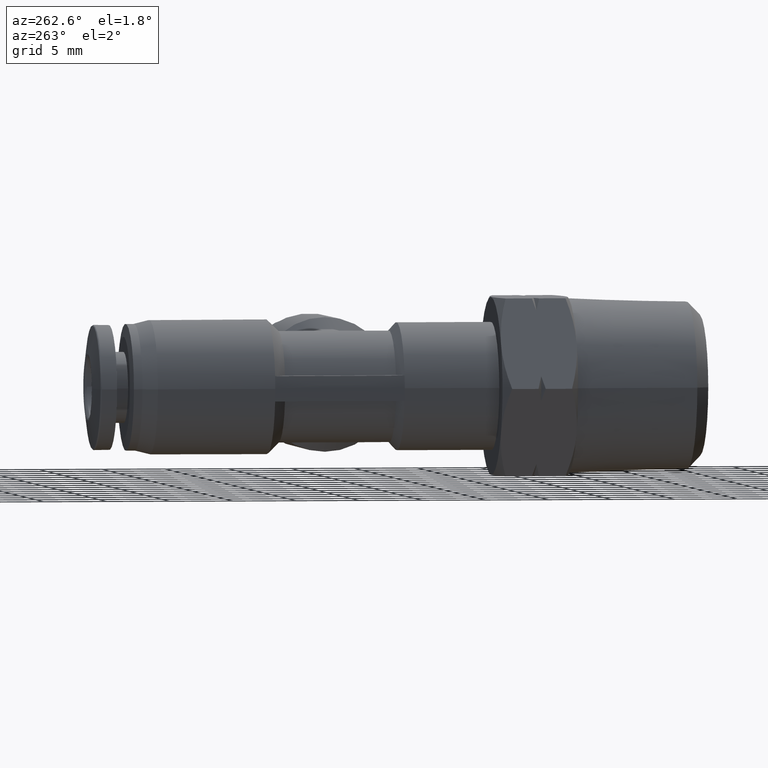
[diagram: clean part render]
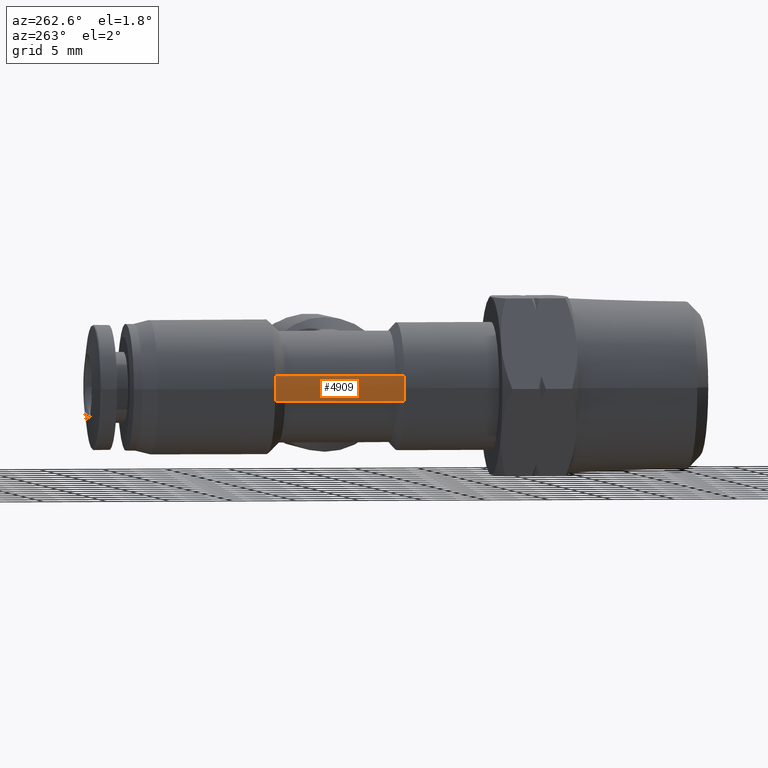
[diagram: same view with one face highlighted and labeled with its STEP entity id]
A machine part, auxiliary view. The second image highlights one B-rep face of the part: STEP entity #4909.
In plain terms, the highlighted face is a freeform B-spline surface patch.
Its self-contained STEP definition (entity closure, byte-faithful):
#110 = CARTESIAN_POINT ( 'NONE',  ( -0.1988123750489689500, 0.2952755905511810800, -4.889223947828115300E-017 ) ) ;
#152 = CARTESIAN_POINT ( 'NONE',  ( -0.2033737411290358600, 0.4304461942257217200, 0.01346103567415456700 ) ) ;
#191 = CARTESIAN_POINT ( 'NONE',  ( -0.1998977455091658100, 0.4980314960629921800, -0.03937007874015551600 ) ) ;
#235 = VERTEX_POINT ( 'NONE', #1703 ) ;
#309 = CARTESIAN_POINT ( 'NONE',  ( -0.2074046388050788100, 0.7007874015748031300, 0.02640471286691186900 ) ) ;
#459 = CARTESIAN_POINT ( 'NONE',  ( -0.1948818897617349000, 0.2952755905489998800, -0.03937007873975885400 ) ) ;
#599 = CARTESIAN_POINT ( 'NONE',  ( -0.2098956763555348300, 0.7007874015748031300, 0.01343934699367027800 ) ) ;
#710 = CARTESIAN_POINT ( 'NONE',  ( -0.2049136012519206000, 0.7007874015775575900, 0.03937007873963555700 ) ) ;
#785 = VERTEX_POINT ( 'NONE', #2352 ) ;
#814 = LINE ( 'NONE', #191, #3291 ) ;
#820 = EDGE_CURVE ( 'NONE', #1497, #2241, #2768, .T. ) ;
#869 = CARTESIAN_POINT ( 'NONE',  ( -0.2086557874515389300, 0.7007874015748033500, 1.338061379198932100E-016 ) ) ;
#996 = CARTESIAN_POINT ( 'NONE',  ( -0.1948818897597008600, 0.2952755905471793300, 0.03937007873973725300 ) ) ;
#1015 = CARTESIAN_POINT ( 'NONE',  ( -0.1948818897637087400, 0.2952755905511810800, -0.03937007874015763900 ) ) ;
#1057 = CARTESIAN_POINT ( 'NONE',  ( -0.1982257935940134900, 0.4304461942257217800, 0.03937007874015625900 ) ) ;
#1079 = B_SPLINE_CURVE_WITH_KNOTS ( 'NONE', 3,
 ( #869, #1778, #5046, #2279 ),
 .UNSPECIFIED., .F., .F.,
 ( 4, 4 ),
 ( 0.4999999999999985600, 1.000000000000000000 ),
 .UNSPECIFIED. ) ;
#1123 = CARTESIAN_POINT ( 'NONE',  ( -0.2086557874515389300, 0.7007874015748033500, 1.338061379198932100E-016 ) ) ;
#1478 = CARTESIAN_POINT ( 'NONE',  ( -0.2015696974243181600, 0.5656167979002625400, -0.03937007874015480800 ) ) ;
#1495 = CARTESIAN_POINT ( 'NONE',  ( -0.2049136012546228800, 0.7007874015748031300, 0.03937007874015338600 ) ) ;
#1497 = VERTEX_POINT ( 'NONE', #5361 ) ;
#1675 = CARTESIAN_POINT ( 'NONE',  ( -0.2086557874515389300, 0.7007874015748033500, 1.338061379198932100E-016 ) ) ;
#1703 = CARTESIAN_POINT ( 'NONE',  ( -0.1948818897617349000, 0.2952755905489998800, -0.03937007873975885400 ) ) ;
#1778 = CARTESIAN_POINT ( 'NONE',  ( -0.2086501575803068300, 0.7007874015748031300, -0.01320235643345581000 ) ) ;
#1785 = CARTESIAN_POINT ( 'NONE',  ( -0.1988188976377251700, 0.2952755905511811300, -0.01321067441155836100 ) ) ;
#1895 = ORIENTED_EDGE ( 'NONE', *, *, #3087, .T. ) ;
#1918 = CARTESIAN_POINT ( 'NONE',  ( -0.1998977455091658100, 0.4980314960629921800, 0.03937007874015555100 ) ) ;
#1956 = CARTESIAN_POINT ( 'NONE',  ( -0.2001138400257140800, 0.2952755905511810800, -0.01347192494324165300 ) ) ;
#1977 = DIRECTION ( 'NONE',  ( -0.02473082899675543200, 0.9996941462753160500, -1.079661359134243400E-014 ) ) ;
#2018 = VERTEX_POINT ( 'NONE', #5517 ) ;
#2041 = B_SPLINE_CURVE_WITH_KNOTS ( 'NONE', 3,
 ( #996, #5144, #2876, #110 ),
 .UNSPECIFIED., .F., .F.,
 ( 4, 4 ),
 ( 0.0000000000000000000, 0.5000000000000000000 ),
 .UNSPECIFIED. ) ;
#2229 = B_SPLINE_CURVE_WITH_KNOTS ( 'NONE', 3,
 ( #4554, #1785, #3227, #459 ),
 .UNSPECIFIED., .F., .F.,
 ( 4, 4 ),
 ( 0.5000000000000000000, 1.000000000000000000 ),
 .UNSPECIFIED. ) ;
#2233 = VERTEX_POINT ( 'NONE', #1123 ) ;
#2241 = VERTEX_POINT ( 'NONE', #710 ) ;
#2279 = CARTESIAN_POINT ( 'NONE',  ( -0.2049136012519205400, 0.7007874015775595900, -0.03937007873963559200 ) ) ;
#2352 = CARTESIAN_POINT ( 'NONE',  ( -0.2049136012519205400, 0.7007874015775595900, -0.03937007873963559200 ) ) ;
#2437 = CARTESIAN_POINT ( 'NONE',  ( -0.2066357752522130500, 0.5656167979002625400, -0.01345023626275740300 ) ) ;
#2641 = ORIENTED_EDGE ( 'NONE', *, *, #4668, .F. ) ;
#2759 = ORIENTED_EDGE ( 'NONE', *, *, #5673, .T. ) ;
#2768 = LINE ( 'NONE', #1918, #2784 ) ;
#2784 = VECTOR ( 'NONE', #1977, 39.37007874015748900 ) ;
#2876 = CARTESIAN_POINT ( 'NONE',  ( -0.1988188976377251700, 0.2952755905511811300, 0.01321067441155826200 ) ) ;
#2908 = CARTESIAN_POINT ( 'NONE',  ( -0.2001138400257140800, 0.2952755905511810800, 0.01347192494324173100 ) ) ;
#3087 = EDGE_CURVE ( 'NONE', #2241, #2233, #4366, .T. ) ;
#3227 = CARTESIAN_POINT ( 'NONE',  ( -0.1974978648947105200, 0.2952755905511810800, -0.02642100184169965400 ) ) ;
#3291 = VECTOR ( 'NONE', #5623, 39.37007874015748900 ) ;
#3383 = CARTESIAN_POINT ( 'NONE',  ( -0.2066357752522130800, 0.5656167979002626500, 0.01345023626275744200 ) ) ;
#3389 = EDGE_CURVE ( 'NONE', #785, #235, #814, .T. ) ;
#3446 = EDGE_LOOP ( 'NONE', ( #1895, #2759, #5317, #2641, #4485, #5702 ) ) ;
#3840 = CARTESIAN_POINT ( 'NONE',  ( -0.1948818897637087400, 0.2952755905511810800, 0.03937007874015772300 ) ) ;
#4277 = CARTESIAN_POINT ( 'NONE',  ( -0.1982257935940134900, 0.4304461942257217800, -0.03937007874015623100 ) ) ;
#4305 = CARTESIAN_POINT ( 'NONE',  ( -0.2015696974243181600, 0.5656167979002625400, 0.03937007874015484300 ) ) ;
#4366 = B_SPLINE_CURVE_WITH_KNOTS ( 'NONE', 3,
 ( #5325, #309, #4477, #1675 ),
 .UNSPECIFIED., .F., .F.,
 ( 4, 4 ),
 ( 0.0000000000000000000, 0.4999999999999985600 ),
 .UNSPECIFIED. ) ;
#4477 = CARTESIAN_POINT ( 'NONE',  ( -0.2086501575803068100, 0.7007874015748031300, 0.01320235643345600200 ) ) ;
#4485 = ORIENTED_EDGE ( 'NONE', *, *, #4858, .F. ) ;
#4554 = CARTESIAN_POINT ( 'NONE',  ( -0.1988123750489689500, 0.2952755905511810800, -4.889223947828115300E-017 ) ) ;
#4668 = EDGE_CURVE ( 'NONE', #2018, #235, #2229, .T. ) ;
#4734 = B_SPLINE_SURFACE_WITH_KNOTS ( 'NONE', 3, 3, ( 
 ( #1015, #4277, #1478, #4745 ),
 ( #1956, #5177, #2437, #5590 ),
 ( #2908, #152, #3383, #599 ),
 ( #3840, #1057, #4305, #1495 ) ),
 .UNSPECIFIED., .F., .F., .F.,
 ( 4, 4 ),
 ( 4, 4 ),
 ( 0.0000000000000000000, 1.000000000000000000 ),
 ( 0.0000000000000000000, 1.000000000000000000 ),
 .UNSPECIFIED. ) ;
#4745 = CARTESIAN_POINT ( 'NONE',  ( -0.2049136012546228800, 0.7007874015748031300, -0.03937007874015335100 ) ) ;
#4858 = EDGE_CURVE ( 'NONE', #1497, #2018, #2041, .T. ) ;
#4909 = ADVANCED_FACE ( 'NONE', ( #5006 ), #4734, .T. ) ;
#5006 = FACE_OUTER_BOUND ( 'NONE', #3446, .T. ) ;
#5046 = CARTESIAN_POINT ( 'NONE',  ( -0.2074046388050788400, 0.7007874015748031300, -0.02640471286691175800 ) ) ;
#5144 = CARTESIAN_POINT ( 'NONE',  ( -0.1974978648947105200, 0.2952755905511810800, 0.02642100184169956000 ) ) ;
#5177 = CARTESIAN_POINT ( 'NONE',  ( -0.2033737411290358600, 0.4304461942257217800, -0.01346103567415448900 ) ) ;
#5317 = ORIENTED_EDGE ( 'NONE', *, *, #3389, .T. ) ;
#5325 = CARTESIAN_POINT ( 'NONE',  ( -0.2049136012519206000, 0.7007874015775575900, 0.03937007873963555700 ) ) ;
#5361 = CARTESIAN_POINT ( 'NONE',  ( -0.1948818897597008600, 0.2952755905471793300, 0.03937007873973725300 ) ) ;
#5517 = CARTESIAN_POINT ( 'NONE',  ( -0.1988123750489689500, 0.2952755905511810800, -4.889223947828115300E-017 ) ) ;
#5590 = CARTESIAN_POINT ( 'NONE',  ( -0.2098956763555348000, 0.7007874015748031300, -0.01343934699367023800 ) ) ;
#5623 = DIRECTION ( 'NONE',  ( 0.02473082899675543200, -0.9996941462753160500, -1.041778504427778700E-014 ) ) ;
#5673 = EDGE_CURVE ( 'NONE', #2233, #785, #1079, .T. ) ;
#5702 = ORIENTED_EDGE ( 'NONE', *, *, #820, .T. ) ;